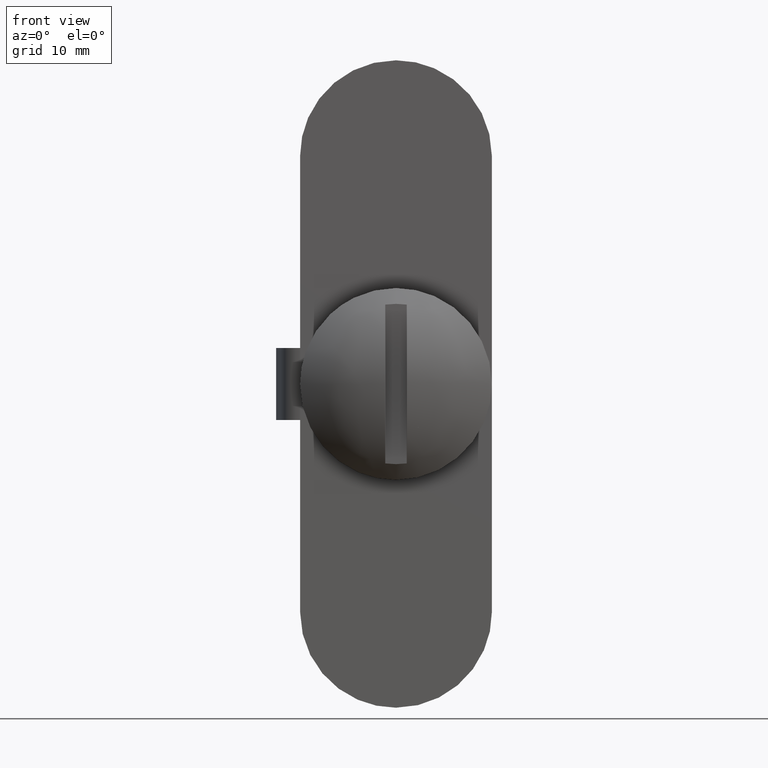
[diagram: clean part render]
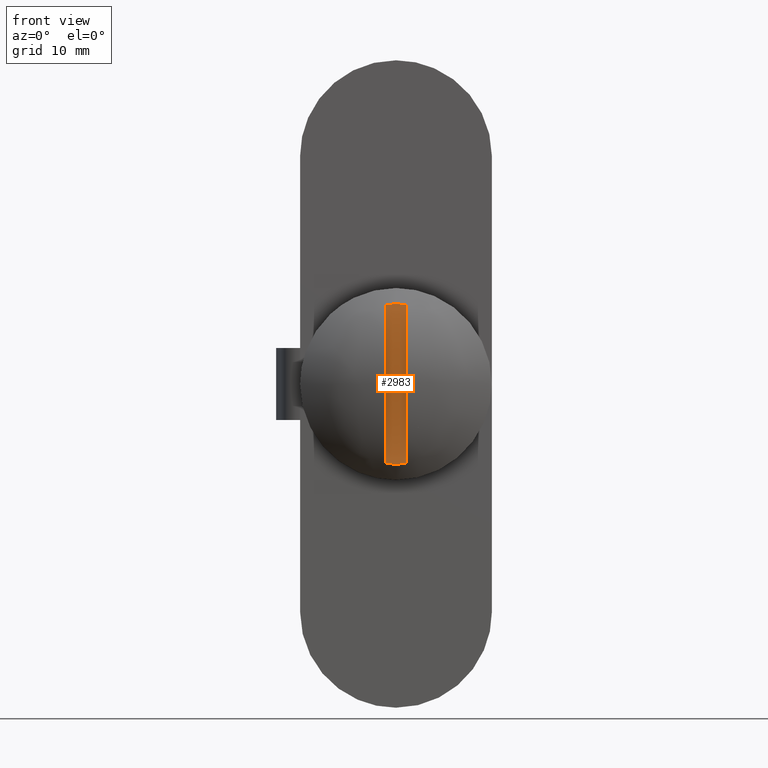
[diagram: same view with one face highlighted and labeled with its STEP entity id]
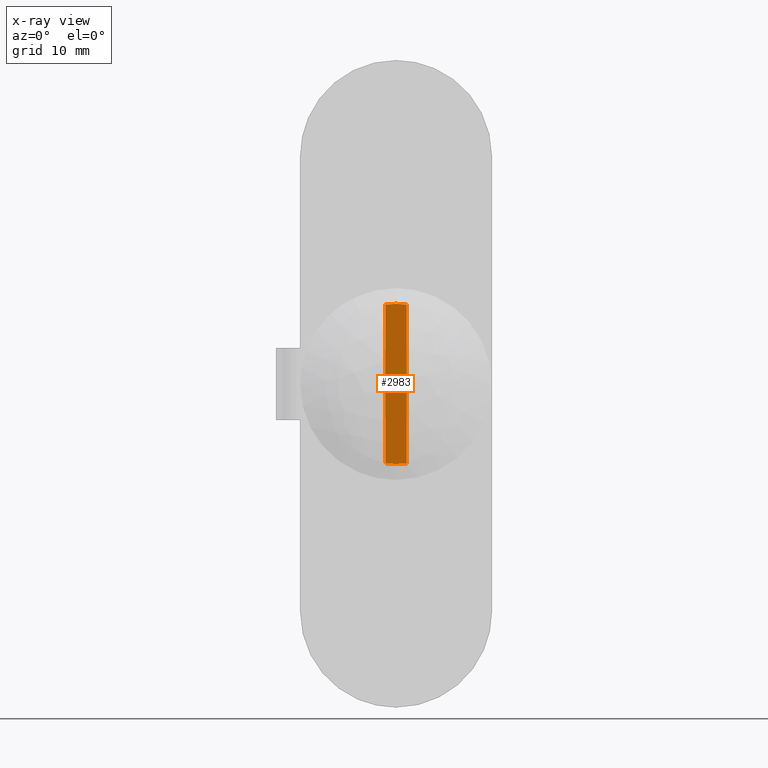
[diagram: x-ray of the same camera — body ghosted, the highlighted face saturated]
A machine part, front view. The second image highlights one B-rep face of the part: STEP entity #2983.
The next image is the same camera in x-ray: the body ghosted, the highlighted face saturated — about 0% of this face is hidden behind the body in this view.
In plain terms, the highlighted face is a freeform B-spline surface patch.
Its self-contained STEP definition (entity closure, byte-faithful):
#2944=CARTESIAN_POINT('',(-0.989903763658325,-5.600000000000000,7.350682233076968));
#2945=CARTESIAN_POINT('',(0.989910795844744,-5.600000000000000,7.350682233076968));
#2946=CARTESIAN_POINT('',(-0.989903763658325,-5.600000000000000,-7.350683308640188));
#2947=CARTESIAN_POINT('',(0.989910795844744,-5.600000000000000,-7.350683308640188));
#2948=B_SPLINE_SURFACE_WITH_KNOTS('',1,1,((#2944,#2946),(#2945,#2947)),.UNSPECIFIED.,.F.,.F.,.U.,(2,2),(2,2),(0.0,1.979814559503070),(0.0,14.701365541717159),.UNSPECIFIED.);
#2949=CARTESIAN_POINT('',(-0.899994000000000,-5.600000000000000,-6.622442132624241));
#2950=VERTEX_POINT('',#2949);
#2951=CARTESIAN_POINT('',(0.900001000000000,-5.600000000000000,-6.622441181316130));
#2952=VERTEX_POINT('',#2951);
#2953=CARTESIAN_POINT('',(-0.899994000000000,-5.600000000000000,-6.622442132624241));
#2954=CARTESIAN_POINT('',(-0.303651838836609,-5.600000000000009,-6.703619826297937));
#2955=CARTESIAN_POINT('',(0.303658416526744,-5.599999999999986,-6.703597469953506));
#2956=CARTESIAN_POINT('',(0.900001000000000,-5.600000000000000,-6.622441181316130));
#2957=B_SPLINE_CURVE_WITH_KNOTS('',3,(#2953,#2954,#2955,#2956),.UNSPECIFIED.,.F.,.U.,(4,4),(1.424860E-009,1.805485486613509),.UNSPECIFIED.);
#2958=EDGE_CURVE('',#2950,#2952,#2957,.T.);
#2959=ORIENTED_EDGE('',*,*,#2958,.T.);
#2960=CARTESIAN_POINT('',(0.900001000000000,-5.600000000000000,6.622441181316130));
#2961=VERTEX_POINT('',#2960);
#2962=CARTESIAN_POINT('',(0.900001000000000,-5.600000000000000,-6.622441181316130));
#2963=CARTESIAN_POINT('',(0.900001000000000,-5.600000000000000,6.622441181316130));
#2964=QUASI_UNIFORM_CURVE('',1,(#2962,#2963),.UNSPECIFIED.,.F.,.U.);
#2965=EDGE_CURVE('',#2952,#2961,#2964,.T.);
#2966=ORIENTED_EDGE('',*,*,#2965,.T.);
#2967=CARTESIAN_POINT('',(-0.899994000000000,-5.600000000000000,6.622442132624251));
#2968=VERTEX_POINT('',#2967);
#2969=CARTESIAN_POINT('',(0.900001000000000,-5.600000000000000,6.622441181316130));
#2970=CARTESIAN_POINT('',(0.303659408565396,-5.599999999999994,6.703572539242150));
#2971=CARTESIAN_POINT('',(-0.303653247332631,-5.600000000000013,6.703639169405187));
#2972=CARTESIAN_POINT('',(-0.899994000000000,-5.600000000000000,6.622442132624251));
#2973=B_SPLINE_CURVE_WITH_KNOTS('',3,(#2969,#2970,#2971,#2972),.UNSPECIFIED.,.F.,.U.,(4,4),(1.424788E-009,1.805485486613510),.UNSPECIFIED.);
#2974=EDGE_CURVE('',#2961,#2968,#2973,.T.);
#2975=ORIENTED_EDGE('',*,*,#2974,.T.);
#2976=CARTESIAN_POINT('',(-0.899994000000000,-5.600000000000000,6.622442132624251));
#2977=CARTESIAN_POINT('',(-0.899994000000000,-5.600000000000000,-6.622442132624241));
#2978=QUASI_UNIFORM_CURVE('',1,(#2976,#2977),.UNSPECIFIED.,.F.,.U.);
#2979=EDGE_CURVE('',#2968,#2950,#2978,.T.);
#2980=ORIENTED_EDGE('',*,*,#2979,.T.);
#2981=EDGE_LOOP('',(#2959,#2966,#2975,#2980));
#2982=FACE_OUTER_BOUND('',#2981,.T.);
#2983=ADVANCED_FACE('',(#2982),#2948,.F.);